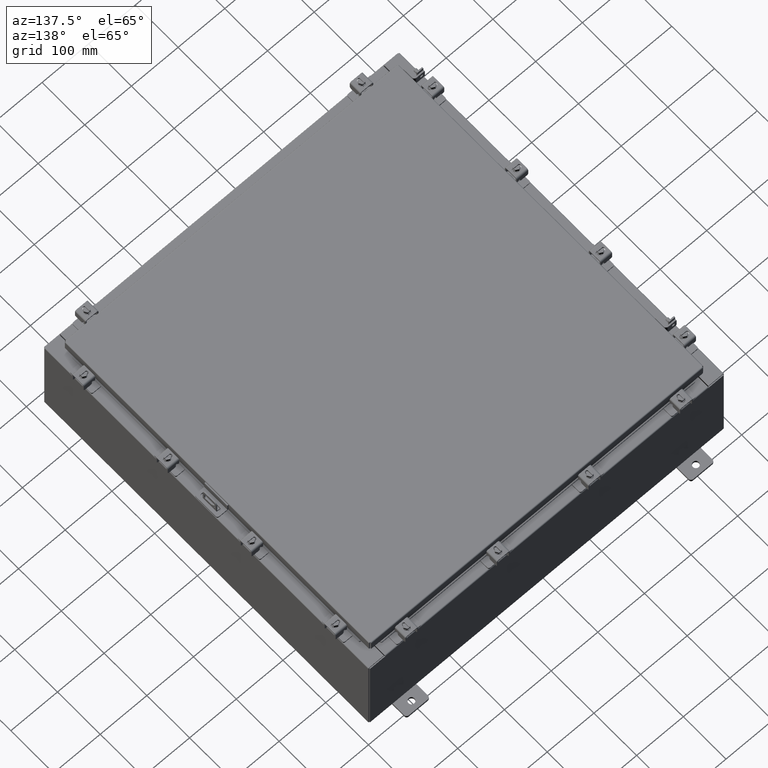
[diagram: clean part render]
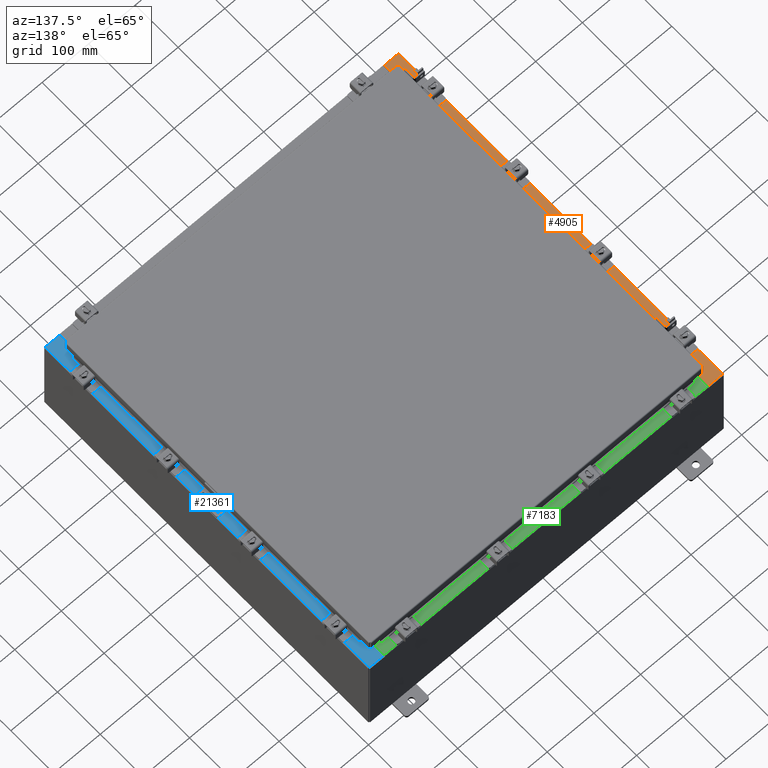
[diagram: same view with three faces highlighted in distinct colors, each labeled with its STEP entity id]
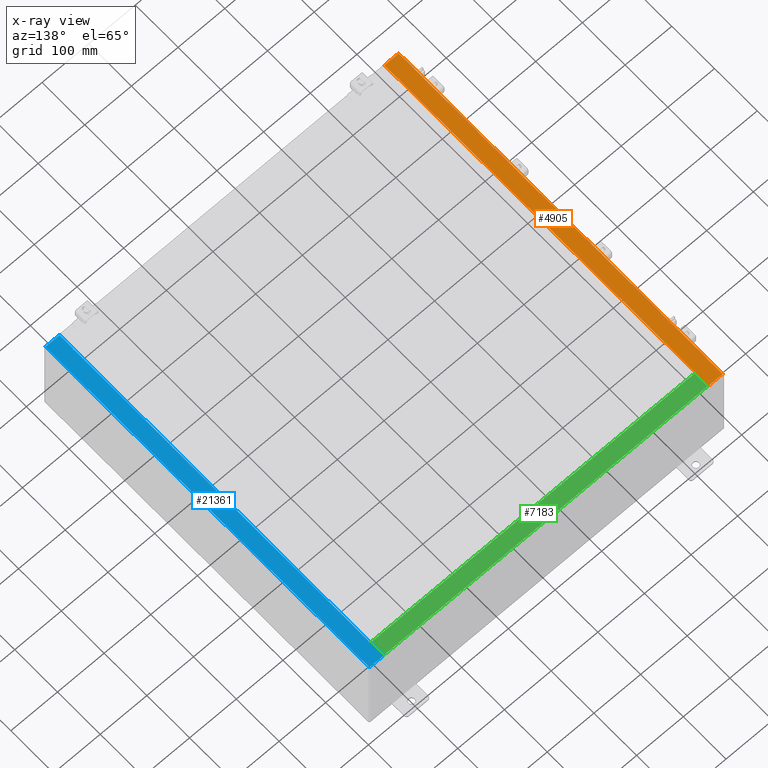
[diagram: x-ray of the same camera — body ghosted, the three highlighted faces saturated]
A machine part, auxiliary view with three faces highlighted in distinct colors.
The next image is the same camera in x-ray (body ghosted, the three faces saturated) — at least one of them is partly hidden behind the body in this view.
Their STEP definitions:

[orange] entity #4905 — the highlighted planar face has unit normal (0, 0, -1).
#377 = PLANE ( 'NONE',  #16339 ) ;
#657 = VERTEX_POINT ( 'NONE', #14532 ) ;
#1418 = VECTOR ( 'NONE', #16381, 39.37007874015748100 ) ;
#1912 = LINE ( 'NONE', #14246, #20042 ) ;
#2496 = VECTOR ( 'NONE', #18598, 39.37007874015748100 ) ;
#2541 = AXIS2_PLACEMENT_3D ( 'NONE', #4078, #17121, #5955 ) ;
#2626 = CARTESIAN_POINT ( 'NONE',  ( -13.69970000000003000, 0.0000000000000000000, 7.925300000000008900 ) ) ;
#2798 = ORIENTED_EDGE ( 'NONE', *, *, #15211, .F. ) ;
#2896 = EDGE_CURVE ( 'NONE', #23916, #22089, #5280, .T. ) ;
#3223 = ORIENTED_EDGE ( 'NONE', *, *, #20101, .T. ) ;
#3268 = DIRECTION ( 'NONE',  ( 0.0000000000000000000, 1.000000000000000000, 0.0000000000000000000 ) ) ;
#3352 = CARTESIAN_POINT ( 'NONE',  ( -13.75005000000002800, 13.59374999999999800, 7.925300000000010700 ) ) ;
#3460 = CARTESIAN_POINT ( 'NONE',  ( -13.75005000000002800, 13.63109999999999600, 7.925300000000007100 ) ) ;
#3476 = VERTEX_POINT ( 'NONE', #11177 ) ;
#3861 = DIRECTION ( 'NONE',  ( -1.000000000000000000, 0.0000000000000000000, 0.0000000000000000000 ) ) ;
#3971 = EDGE_CURVE ( 'NONE', #657, #17443, #19310, .T. ) ;
#4078 = CARTESIAN_POINT ( 'NONE',  ( -13.75005000000002800, -13.61242500000000000, 7.925300000000010700 ) ) ;
#4290 = EDGE_CURVE ( 'NONE', #3476, #18486, #17815, .T. ) ;
#4496 = CARTESIAN_POINT ( 'NONE',  ( -13.69970000000003000, -13.63110000000000200, 7.925300000000008900 ) ) ;
#4905 = ADVANCED_FACE ( 'NONE', ( #11637 ), #377, .F. ) ;
#4950 = LINE ( 'NONE', #12038, #19275 ) ;
#5280 = LINE ( 'NONE', #23876, #19608 ) ;
#5343 = DIRECTION ( 'NONE',  ( -7.132762385546384700E-015, -0.0000000000000000000, 1.000000000000000000 ) ) ;
#5525 = CARTESIAN_POINT ( 'NONE',  ( -14.91230000000002900, 14.92530000000000000, 7.925300000000000000 ) ) ;
#5645 = LINE ( 'NONE', #2626, #6218 ) ;
#5955 = DIRECTION ( 'NONE',  ( 1.000000000000000000, 0.0000000000000000000, 0.0000000000000000000 ) ) ;
#6014 = CARTESIAN_POINT ( 'NONE',  ( -5.679009539018309800E-014, 0.0000000000000000000, 7.925300000000105700 ) ) ;
#6218 = VECTOR ( 'NONE', #13712, 39.37007874015748100 ) ;
#6429 = VECTOR ( 'NONE', #20813, 39.37007874015748100 ) ;
#6459 = VECTOR ( 'NONE', #12662, 39.37007874015748100 ) ;
#6519 = ORIENTED_EDGE ( 'NONE', *, *, #4290, .F. ) ;
#6542 = CARTESIAN_POINT ( 'NONE',  ( -13.69970000000003000, 13.63109999999999800, 7.925300000000008900 ) ) ;
#7195 = CARTESIAN_POINT ( 'NONE',  ( -13.71270000000003000, 13.59374999999999800, 7.925300000000010700 ) ) ;
#7346 = ORIENTED_EDGE ( 'NONE', *, *, #23671, .F. ) ;
#7733 = CARTESIAN_POINT ( 'NONE',  ( -5.679009539018309800E-014, -14.92530000000000000, 7.925300000000105700 ) ) ;
#8217 = LINE ( 'NONE', #23881, #6459 ) ;
#8339 = ORIENTED_EDGE ( 'NONE', *, *, #8810, .T. ) ;
#8714 = CARTESIAN_POINT ( 'NONE',  ( -13.75005000000002800, 13.59374999999999800, 7.925300000000007100 ) ) ;
#8810 = EDGE_CURVE ( 'NONE', #14760, #657, #16949, .T. ) ;
#9751 = DIRECTION ( 'NONE',  ( 7.132762385546384700E-015, 0.0000000000000000000, -1.000000000000000000 ) ) ;
#9881 = EDGE_CURVE ( 'NONE', #17623, #17041, #21312, .T. ) ;
#11177 = CARTESIAN_POINT ( 'NONE',  ( -13.75005000000002800, -13.59375000000000000, 7.925300000000007100 ) ) ;
#11637 = FACE_OUTER_BOUND ( 'NONE', #23280, .T. ) ;
#11798 = LINE ( 'NONE', #5525, #2496 ) ;
#11836 = ORIENTED_EDGE ( 'NONE', *, *, #19135, .F. ) ;
#12038 = CARTESIAN_POINT ( 'NONE',  ( -13.75005000000002800, -13.63109999999999800, 7.925300000000010700 ) ) ;
#12540 = CARTESIAN_POINT ( 'NONE',  ( -13.69970000000003000, 0.0000000000000000000, 7.925300000000008900 ) ) ;
#12662 = DIRECTION ( 'NONE',  ( -0.0000000000000000000, -1.000000000000000000, -0.0000000000000000000 ) ) ;
#12879 = EDGE_CURVE ( 'NONE', #19613, #17023, #1912, .T. ) ;
#13433 = ORIENTED_EDGE ( 'NONE', *, *, #12879, .F. ) ;
#13482 = CARTESIAN_POINT ( 'NONE',  ( -14.91230000000002900, 14.92530000000000000, 7.925300000000000000 ) ) ;
#13712 = DIRECTION ( 'NONE',  ( 0.0000000000000000000, 1.000000000000000000, 0.0000000000000000000 ) ) ;
#14246 = CARTESIAN_POINT ( 'NONE',  ( -13.69970000000003000, 13.63109999999999800, 7.925300000000009800 ) ) ;
#14521 = ORIENTED_EDGE ( 'NONE', *, *, #15533, .F. ) ;
#14532 = CARTESIAN_POINT ( 'NONE',  ( -13.69970000000003000, -14.92530000000000000, 7.925300000000008900 ) ) ;
#14760 = VERTEX_POINT ( 'NONE', #19659 ) ;
#14835 = VECTOR ( 'NONE', #3861, 39.37007874015748100 ) ;
#15153 = CARTESIAN_POINT ( 'NONE',  ( -13.71270000000003000, -13.59375000000000000, 7.925300000000010700 ) ) ;
#15192 = CARTESIAN_POINT ( 'NONE',  ( -13.69970000000003000, 14.92530000000000000, 7.925300000000008900 ) ) ;
#15211 = EDGE_CURVE ( 'NONE', #18649, #3476, #19831, .T. ) ;
#15533 = EDGE_CURVE ( 'NONE', #18486, #17443, #4950, .T. ) ;
#15762 = AXIS2_PLACEMENT_3D ( 'NONE', #16508, #5343, #18427 ) ;
#16011 = ORIENTED_EDGE ( 'NONE', *, *, #3971, .T. ) ;
#16339 = AXIS2_PLACEMENT_3D ( 'NONE', #6014, #9751, #22824 ) ;
#16381 = DIRECTION ( 'NONE',  ( 1.000000000000000000, 0.0000000000000000000, 0.0000000000000000000 ) ) ;
#16435 = DIRECTION ( 'NONE',  ( -1.000000000000000000, -4.340572780400098900E-014, 2.170286390200049500E-014 ) ) ;
#16508 = CARTESIAN_POINT ( 'NONE',  ( -13.75005000000002800, 13.61242499999999600, 7.925300000000010700 ) ) ;
#16540 = CARTESIAN_POINT ( 'NONE',  ( -13.75005000000002800, -13.63109999999999800, 7.925300000000007100 ) ) ;
#16888 = CARTESIAN_POINT ( 'NONE',  ( -13.71270000000003000, -13.59375000000000000, 7.925300000000010700 ) ) ;
#16949 = LINE ( 'NONE', #7733, #6429 ) ;
#17023 = VERTEX_POINT ( 'NONE', #3460 ) ;
#17041 = VERTEX_POINT ( 'NONE', #7195 ) ;
#17121 = DIRECTION ( 'NONE',  ( -7.132762385546384700E-015, -0.0000000000000000000, 1.000000000000000000 ) ) ;
#17443 = VERTEX_POINT ( 'NONE', #4496 ) ;
#17623 = VERTEX_POINT ( 'NONE', #8714 ) ;
#17693 = ORIENTED_EDGE ( 'NONE', *, *, #9881, .F. ) ;
#17815 = CIRCLE ( 'NONE', #2541, 0.01867499999999949400 ) ;
#18427 = DIRECTION ( 'NONE',  ( 1.000000000000000000, 0.0000000000000000000, 0.0000000000000000000 ) ) ;
#18486 = VERTEX_POINT ( 'NONE', #16540 ) ;
#18598 = DIRECTION ( 'NONE',  ( -0.0000000000000000000, 1.000000000000000000, -0.0000000000000000000 ) ) ;
#18616 = ORIENTED_EDGE ( 'NONE', *, *, #2896, .T. ) ;
#18649 = VERTEX_POINT ( 'NONE', #15153 ) ;
#19135 = EDGE_CURVE ( 'NONE', #17023, #17623, #23787, .T. ) ;
#19275 = VECTOR ( 'NONE', #23262, 39.37007874015748100 ) ;
#19310 = LINE ( 'NONE', #12540, #23691 ) ;
#19608 = VECTOR ( 'NONE', #24044, 39.37007874015748100 ) ;
#19613 = VERTEX_POINT ( 'NONE', #6542 ) ;
#19659 = CARTESIAN_POINT ( 'NONE',  ( -14.91230000000002900, -14.92530000000000000, 7.925300000000000000 ) ) ;
#19831 = LINE ( 'NONE', #16888, #14835 ) ;
#20042 = VECTOR ( 'NONE', #16435, 39.37007874015748100 ) ;
#20101 = EDGE_CURVE ( 'NONE', #19613, #23916, #5645, .T. ) ;
#20317 = ORIENTED_EDGE ( 'NONE', *, *, #21211, .F. ) ;
#20813 = DIRECTION ( 'NONE',  ( 1.000000000000000000, -0.0000000000000000000, 7.132762385546384700E-015 ) ) ;
#21211 = EDGE_CURVE ( 'NONE', #14760, #22089, #11798, .T. ) ;
#21312 = LINE ( 'NONE', #3352, #1418 ) ;
#22089 = VERTEX_POINT ( 'NONE', #13482 ) ;
#22824 = DIRECTION ( 'NONE',  ( -1.000000000000000000, 0.0000000000000000000, -7.132762385546384700E-015 ) ) ;
#23262 = DIRECTION ( 'NONE',  ( 1.000000000000000000, 0.0000000000000000000, -2.170286390200049500E-014 ) ) ;
#23280 = EDGE_LOOP ( 'NONE', ( #13433, #3223, #18616, #20317, #8339, #16011, #14521, #6519, #2798, #7346, #17693, #11836 ) ) ;
#23671 = EDGE_CURVE ( 'NONE', #17041, #18649, #8217, .T. ) ;
#23691 = VECTOR ( 'NONE', #3268, 39.37007874015748100 ) ;
#23787 = CIRCLE ( 'NONE', #15762, 0.01867499999999949400 ) ;
#23876 = CARTESIAN_POINT ( 'NONE',  ( -5.679009539018309800E-014, 14.92530000000000000, 7.925300000000105700 ) ) ;
#23881 = CARTESIAN_POINT ( 'NONE',  ( -13.71270000000003000, 13.59375000000000000, 7.925300000000010700 ) ) ;
#23916 = VERTEX_POINT ( 'NONE', #15192 ) ;
#24044 = DIRECTION ( 'NONE',  ( -1.000000000000000000, 0.0000000000000000000, -7.132762385546384700E-015 ) ) ;

[blue] entity #21361 — the highlighted planar face has unit normal (-0, 0, -1).
#271 = CARTESIAN_POINT ( 'NONE',  ( 13.75005000000003200, -13.61242500000000400, 7.925300000000008900 ) ) ;
#356 = ORIENTED_EDGE ( 'NONE', *, *, #20981, .T. ) ;
#719 = DIRECTION ( 'NONE',  ( -1.000000000000000000, 0.0000000000000000000, 6.241167087353087800E-015 ) ) ;
#787 = ORIENTED_EDGE ( 'NONE', *, *, #14815, .F. ) ;
#814 = VECTOR ( 'NONE', #4882, 39.37007874015748100 ) ;
#1228 = CARTESIAN_POINT ( 'NONE',  ( 13.75005000000003200, 13.63109999999998600, 7.925300000000006200 ) ) ;
#1577 = CARTESIAN_POINT ( 'NONE',  ( 13.69970000000003000, -3.548822517689199900E-030, 7.925300000000007100 ) ) ;
#2004 = LINE ( 'NONE', #17926, #3191 ) ;
#2061 = VERTEX_POINT ( 'NONE', #1228 ) ;
#2139 = DIRECTION ( 'NONE',  ( 1.000000000000000000, 0.0000000000000000000, 0.0000000000000000000 ) ) ;
#2154 = LINE ( 'NONE', #22626, #21441 ) ;
#2327 = EDGE_CURVE ( 'NONE', #11964, #10303, #14642, .T. ) ;
#2396 = ORIENTED_EDGE ( 'NONE', *, *, #10459, .T. ) ;
#2600 = CARTESIAN_POINT ( 'NONE',  ( 13.71270000000003200, 13.59374999999998600, 7.925300000000008900 ) ) ;
#2649 = EDGE_CURVE ( 'NONE', #3798, #2061, #9377, .T. ) ;
#2965 = VECTOR ( 'NONE', #719, 39.37007874015748100 ) ;
#2996 = CARTESIAN_POINT ( 'NONE',  ( 7.633858978166047400E-014, -14.92530000000002700, 7.925300000000092400 ) ) ;
#3191 = VECTOR ( 'NONE', #6750, 39.37007874015748100 ) ;
#3513 = ORIENTED_EDGE ( 'NONE', *, *, #2649, .F. ) ;
#3798 = VERTEX_POINT ( 'NONE', #21406 ) ;
#3879 = LINE ( 'NONE', #4716, #13202 ) ;
#4380 = VERTEX_POINT ( 'NONE', #9844 ) ;
#4411 = CARTESIAN_POINT ( 'NONE',  ( 14.91230000000002900, 14.92530000000000200, 7.925300000000000000 ) ) ;
#4529 = FACE_OUTER_BOUND ( 'NONE', #9957, .T. ) ;
#4589 = CARTESIAN_POINT ( 'NONE',  ( 13.69970000000003000, 14.92530000000000200, 7.925300000000007100 ) ) ;
#4716 = CARTESIAN_POINT ( 'NONE',  ( 13.69970000000003000, -3.548822517689199900E-030, 7.925300000000007100 ) ) ;
#4882 = DIRECTION ( 'NONE',  ( 1.000000000000000000, 1.783190596386596200E-015, -6.241167087353087800E-015 ) ) ;
#5061 = VECTOR ( 'NONE', #8259, 39.37007874015748100 ) ;
#5431 = EDGE_CURVE ( 'NONE', #11517, #9549, #6662, .T. ) ;
#5664 = VERTEX_POINT ( 'NONE', #4589 ) ;
#5673 = CARTESIAN_POINT ( 'NONE',  ( 14.91230000000002900, -14.92530000000000200, 7.925300000000000000 ) ) ;
#6578 = DIRECTION ( 'NONE',  ( -2.590438124695581200E-031, -1.000000000000000000, 1.616735716567471300E-045 ) ) ;
#6661 = DIRECTION ( 'NONE',  ( 1.000000000000000000, 0.0000000000000000000, 0.0000000000000000000 ) ) ;
#6662 = CIRCLE ( 'NONE', #14179, 0.01867499999999949400 ) ;
#6750 = DIRECTION ( 'NONE',  ( 1.000000000000000000, 0.0000000000000000000, 0.0000000000000000000 ) ) ;
#7046 = AXIS2_PLACEMENT_3D ( 'NONE', #9672, #22732, #11524 ) ;
#7104 = DIRECTION ( 'NONE',  ( 6.241167087353086200E-015, 0.0000000000000000000, 1.000000000000000000 ) ) ;
#7593 = ORIENTED_EDGE ( 'NONE', *, *, #5431, .F. ) ;
#7624 = VECTOR ( 'NONE', #16908, 39.37007874015748100 ) ;
#7795 = DIRECTION ( 'NONE',  ( -0.0000000000000000000, 1.000000000000000000, -0.0000000000000000000 ) ) ;
#8168 = CARTESIAN_POINT ( 'NONE',  ( 13.75005000000003200, -13.59375000000000400, 7.925300000000006200 ) ) ;
#8259 = DIRECTION ( 'NONE',  ( 1.000000000000000000, 0.0000000000000000000, 0.0000000000000000000 ) ) ;
#8376 = VERTEX_POINT ( 'NONE', #4411 ) ;
#8426 = EDGE_CURVE ( 'NONE', #8376, #5664, #13466, .T. ) ;
#9377 = CIRCLE ( 'NONE', #20363, 0.01867499999999949400 ) ;
#9549 = VERTEX_POINT ( 'NONE', #8168 ) ;
#9562 = DIRECTION ( 'NONE',  ( -1.000000000000000000, 0.0000000000000000000, 0.0000000000000000000 ) ) ;
#9672 = CARTESIAN_POINT ( 'NONE',  ( 4.972393517341156900E-014, 0.0000000000000000000, 7.925300000000092400 ) ) ;
#9844 = CARTESIAN_POINT ( 'NONE',  ( 13.69970000000003000, -13.63110000000000400, 7.925300000000007100 ) ) ;
#9957 = EDGE_LOOP ( 'NONE', ( #16463, #22672, #2396, #13335, #13684, #356, #20496, #3513, #787, #18584, #14207, #7593 ) ) ;
#10261 = VECTOR ( 'NONE', #7795, 39.37007874015748100 ) ;
#10303 = VERTEX_POINT ( 'NONE', #2600 ) ;
#10362 = LINE ( 'NONE', #1577, #15326 ) ;
#10459 = EDGE_CURVE ( 'NONE', #20188, #22424, #15118, .T. ) ;
#11517 = VERTEX_POINT ( 'NONE', #22697 ) ;
#11524 = DIRECTION ( 'NONE',  ( -1.000000000000000000, 0.0000000000000000000, 6.241167087353086200E-015 ) ) ;
#11964 = VERTEX_POINT ( 'NONE', #18036 ) ;
#12508 = VECTOR ( 'NONE', #17856, 39.37007874015748100 ) ;
#12550 = LINE ( 'NONE', #5673, #7624 ) ;
#12628 = CARTESIAN_POINT ( 'NONE',  ( 14.91230000000002900, -14.92530000000000200, 7.925300000000000000 ) ) ;
#12710 = CARTESIAN_POINT ( 'NONE',  ( 13.69970000000003000, 13.63109999999998600, 7.925300000000007100 ) ) ;
#13152 = CARTESIAN_POINT ( 'NONE',  ( 13.71270000000003200, -13.59375000000000000, 7.925300000000008900 ) ) ;
#13202 = VECTOR ( 'NONE', #6578, 39.37007874015748100 ) ;
#13311 = DIRECTION ( 'NONE',  ( 6.241167087353086200E-015, 0.0000000000000000000, 1.000000000000000000 ) ) ;
#13335 = ORIENTED_EDGE ( 'NONE', *, *, #13756, .F. ) ;
#13340 = PLANE ( 'NONE',  #7046 ) ;
#13466 = LINE ( 'NONE', #17532, #2965 ) ;
#13684 = ORIENTED_EDGE ( 'NONE', *, *, #8426, .T. ) ;
#13756 = EDGE_CURVE ( 'NONE', #8376, #22424, #12550, .T. ) ;
#14179 = AXIS2_PLACEMENT_3D ( 'NONE', #271, #13311, #2139 ) ;
#14207 = ORIENTED_EDGE ( 'NONE', *, *, #22033, .F. ) ;
#14642 = LINE ( 'NONE', #13152, #10261 ) ;
#14643 = DIRECTION ( 'NONE',  ( -2.590438124695581200E-031, -1.000000000000000000, 1.616735716567471300E-045 ) ) ;
#14815 = EDGE_CURVE ( 'NONE', #10303, #3798, #2004, .T. ) ;
#15118 = LINE ( 'NONE', #2996, #814 ) ;
#15326 = VECTOR ( 'NONE', #14643, 39.37007874015748100 ) ;
#15617 = EDGE_CURVE ( 'NONE', #2061, #22462, #18689, .T. ) ;
#15899 = CARTESIAN_POINT ( 'NONE',  ( 13.69970000000003000, -14.92530000000000200, 7.925300000000007100 ) ) ;
#15964 = CARTESIAN_POINT ( 'NONE',  ( 13.75005000000003200, 13.63109999999998600, 7.925300000000008900 ) ) ;
#16087 = CARTESIAN_POINT ( 'NONE',  ( 13.75005000000003200, 13.61242499999998600, 7.925300000000008900 ) ) ;
#16463 = ORIENTED_EDGE ( 'NONE', *, *, #19569, .F. ) ;
#16908 = DIRECTION ( 'NONE',  ( -0.0000000000000000000, -1.000000000000000000, -0.0000000000000000000 ) ) ;
#17532 = CARTESIAN_POINT ( 'NONE',  ( 4.972393517341156900E-014, 14.92530000000000000, 7.925300000000092400 ) ) ;
#17856 = DIRECTION ( 'NONE',  ( -1.000000000000000000, 0.0000000000000000000, 0.0000000000000000000 ) ) ;
#17926 = CARTESIAN_POINT ( 'NONE',  ( 13.71270000000003200, 13.59374999999998600, 7.925300000000008900 ) ) ;
#18036 = CARTESIAN_POINT ( 'NONE',  ( 13.71270000000003200, -13.59375000000000400, 7.925300000000008900 ) ) ;
#18584 = ORIENTED_EDGE ( 'NONE', *, *, #2327, .F. ) ;
#18689 = LINE ( 'NONE', #15964, #12508 ) ;
#19463 = CARTESIAN_POINT ( 'NONE',  ( 13.69970000000003000, -13.63110000000000400, 7.925300000000008900 ) ) ;
#19569 = EDGE_CURVE ( 'NONE', #4380, #11517, #20581, .T. ) ;
#20188 = VERTEX_POINT ( 'NONE', #15899 ) ;
#20363 = AXIS2_PLACEMENT_3D ( 'NONE', #16087, #7104, #6661 ) ;
#20496 = ORIENTED_EDGE ( 'NONE', *, *, #15617, .F. ) ;
#20581 = LINE ( 'NONE', #19463, #5061 ) ;
#20981 = EDGE_CURVE ( 'NONE', #5664, #22462, #10362, .T. ) ;
#21361 = ADVANCED_FACE ( 'NONE', ( #4529 ), #13340, .F. ) ;
#21406 = CARTESIAN_POINT ( 'NONE',  ( 13.75005000000003200, 13.59374999999998600, 7.925300000000006200 ) ) ;
#21441 = VECTOR ( 'NONE', #9562, 39.37007874015748100 ) ;
#22033 = EDGE_CURVE ( 'NONE', #9549, #11964, #2154, .T. ) ;
#22424 = VERTEX_POINT ( 'NONE', #12628 ) ;
#22462 = VERTEX_POINT ( 'NONE', #12710 ) ;
#22626 = CARTESIAN_POINT ( 'NONE',  ( 13.75005000000003200, -13.59375000000000400, 7.925300000000008900 ) ) ;
#22672 = ORIENTED_EDGE ( 'NONE', *, *, #22986, .T. ) ;
#22697 = CARTESIAN_POINT ( 'NONE',  ( 13.75005000000003200, -13.63110000000000400, 7.925300000000006200 ) ) ;
#22732 = DIRECTION ( 'NONE',  ( -6.241167087353086200E-015, 0.0000000000000000000, -1.000000000000000000 ) ) ;
#22986 = EDGE_CURVE ( 'NONE', #4380, #20188, #3879, .T. ) ;

[green] entity #7183 — the highlighted planar face has unit normal (0, 0, 1).
#936 = ORIENTED_EDGE ( 'NONE', *, *, #21603, .F. ) ;
#1760 = ORIENTED_EDGE ( 'NONE', *, *, #4970, .T. ) ;
#2898 = LINE ( 'NONE', #15286, #7867 ) ;
#4131 = DIRECTION ( 'NONE',  ( -0.0000000000000000000, 1.000000000000000000, -3.566381192773190000E-015 ) ) ;
#4565 = VERTEX_POINT ( 'NONE', #20070 ) ;
#4970 = EDGE_CURVE ( 'NONE', #10631, #14413, #19848, .T. ) ;
#5226 = LINE ( 'NONE', #14962, #10768 ) ;
#5534 = VECTOR ( 'NONE', #22899, 39.37007874015748100 ) ;
#6474 = PLANE ( 'NONE',  #8416 ) ;
#6539 = EDGE_LOOP ( 'NONE', ( #18906, #21058, #936, #1760 ) ) ;
#6555 = CARTESIAN_POINT ( 'NONE',  ( 13.63720000000000400, -1.300299999999999800, 4.000000000000004400 ) ) ;
#7151 = VERTEX_POINT ( 'NONE', #13822 ) ;
#7183 = ADVANCED_FACE ( 'NONE', ( #15842 ), #6474, .T. ) ;
#7429 = CARTESIAN_POINT ( 'NONE',  ( -13.63719999999999800, -0.08770000000000000000, 4.000000000000000000 ) ) ;
#7867 = VECTOR ( 'NONE', #4131, 39.37007874015748100 ) ;
#8416 = AXIS2_PLACEMENT_3D ( 'NONE', #19560, #21431, #10224 ) ;
#10224 = DIRECTION ( 'NONE',  ( 0.0000000000000000000, -1.000000000000000000, 3.566381192773190000E-015 ) ) ;
#10631 = VERTEX_POINT ( 'NONE', #10888 ) ;
#10746 = EDGE_CURVE ( 'NONE', #7151, #4565, #5226, .T. ) ;
#10768 = VECTOR ( 'NONE', #16843, 39.37007874015748100 ) ;
#10846 = EDGE_CURVE ( 'NONE', #4565, #14413, #2898, .T. ) ;
#10888 = CARTESIAN_POINT ( 'NONE',  ( 13.63720000000000400, -0.08769999999999965300, 4.000000000000000000 ) ) ;
#10924 = VECTOR ( 'NONE', #23304, 39.37007874015748100 ) ;
#11769 = CARTESIAN_POINT ( 'NONE',  ( -1.756834753793995900E-018, -0.08770000000000000000, 4.000000000000000900 ) ) ;
#13822 = CARTESIAN_POINT ( 'NONE',  ( 13.63720000000000400, -1.287299999999999900, 4.000000000000004400 ) ) ;
#14413 = VERTEX_POINT ( 'NONE', #7429 ) ;
#14962 = CARTESIAN_POINT ( 'NONE',  ( 13.63720000000000400, -1.287299999999999900, 4.000000000000003600 ) ) ;
#15286 = CARTESIAN_POINT ( 'NONE',  ( -13.63719999999999800, -0.07469999999999973900, 4.000000000000000000 ) ) ;
#15842 = FACE_OUTER_BOUND ( 'NONE', #6539, .T. ) ;
#16843 = DIRECTION ( 'NONE',  ( -1.000000000000000000, 0.0000000000000000000, 0.0000000000000000000 ) ) ;
#18906 = ORIENTED_EDGE ( 'NONE', *, *, #10846, .F. ) ;
#19560 = CARTESIAN_POINT ( 'NONE',  ( 0.0000000000000000000, 1.425992975200418500E-014, 4.000000000000000000 ) ) ;
#19848 = LINE ( 'NONE', #11769, #5534 ) ;
#20070 = CARTESIAN_POINT ( 'NONE',  ( -13.63719999999999800, -1.287299999999999200, 4.000000000000004400 ) ) ;
#20304 = LINE ( 'NONE', #6555, #10924 ) ;
#21058 = ORIENTED_EDGE ( 'NONE', *, *, #10746, .F. ) ;
#21431 = DIRECTION ( 'NONE',  ( 0.0000000000000000000, 3.566381192773190000E-015, 1.000000000000000000 ) ) ;
#21603 = EDGE_CURVE ( 'NONE', #10631, #7151, #20304, .T. ) ;
#22899 = DIRECTION ( 'NONE',  ( -1.000000000000000000, 2.003232330437526000E-017, -7.144290108027600900E-032 ) ) ;
#23304 = DIRECTION ( 'NONE',  ( -0.0000000000000000000, -1.000000000000000000, 3.566381192773190000E-015 ) ) ;